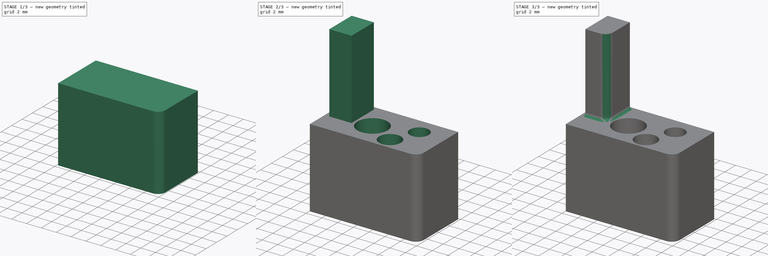
[diagram: build sequence overview — one tinted view per stage of 3, left to right]
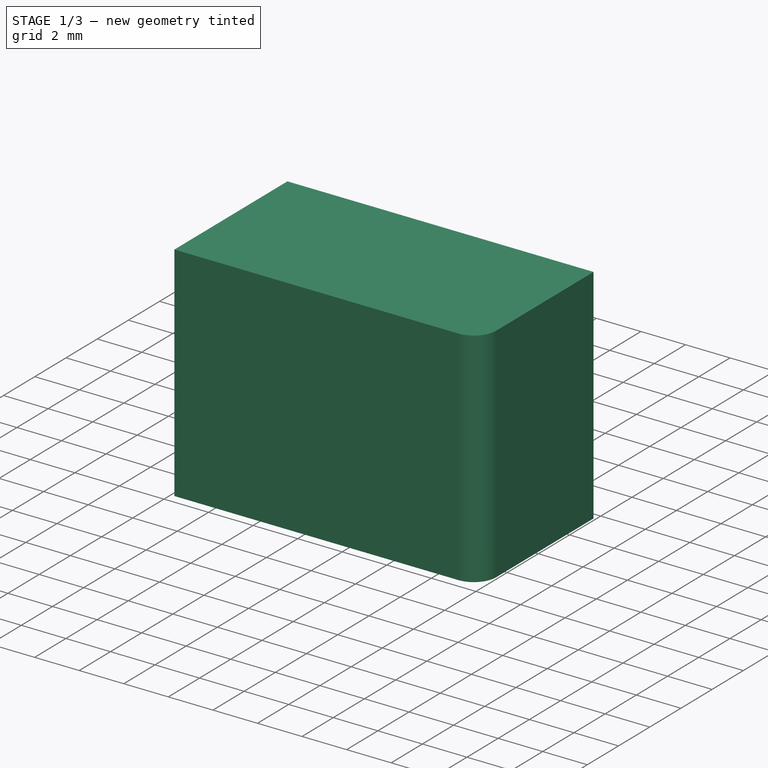
[diagram: stage 1 of 3 — iso view after this stage's code; geometry added in this stage tinted green]
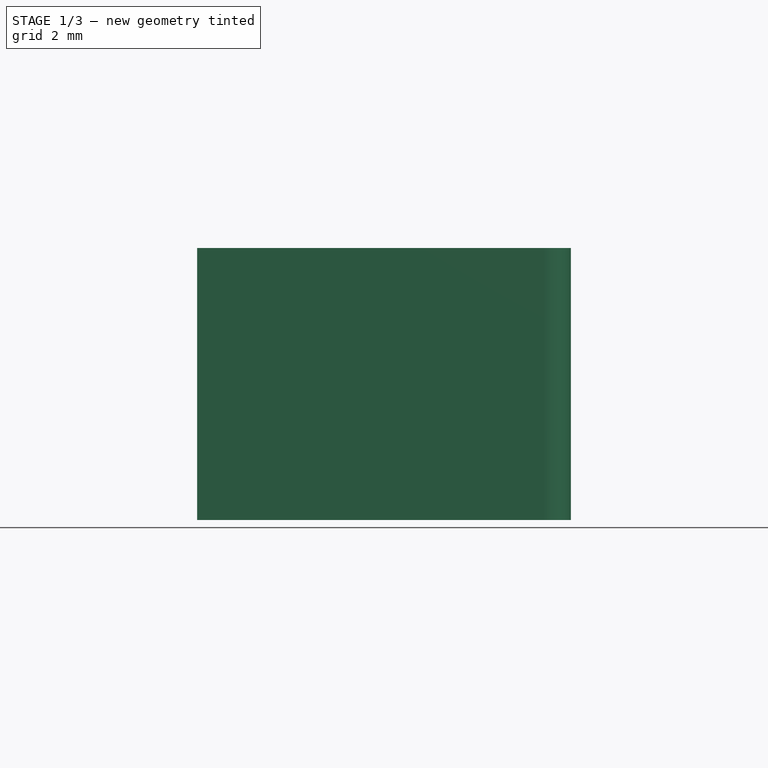
[diagram: stage 1 of 3 — front view after this stage's code; geometry added in this stage tinted green]
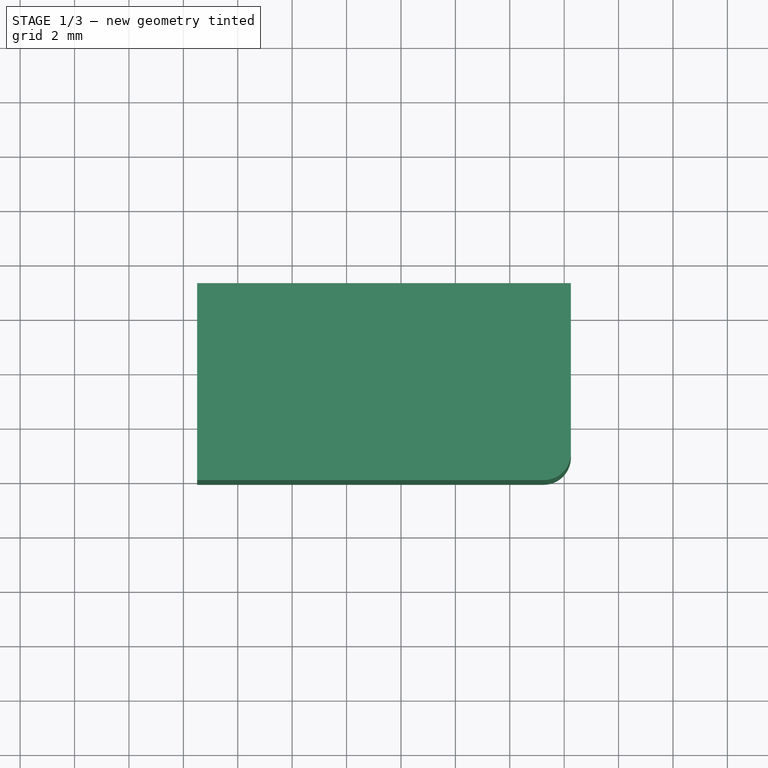
[diagram: stage 1 of 3 — top view after this stage's code; geometry added in this stage tinted green]
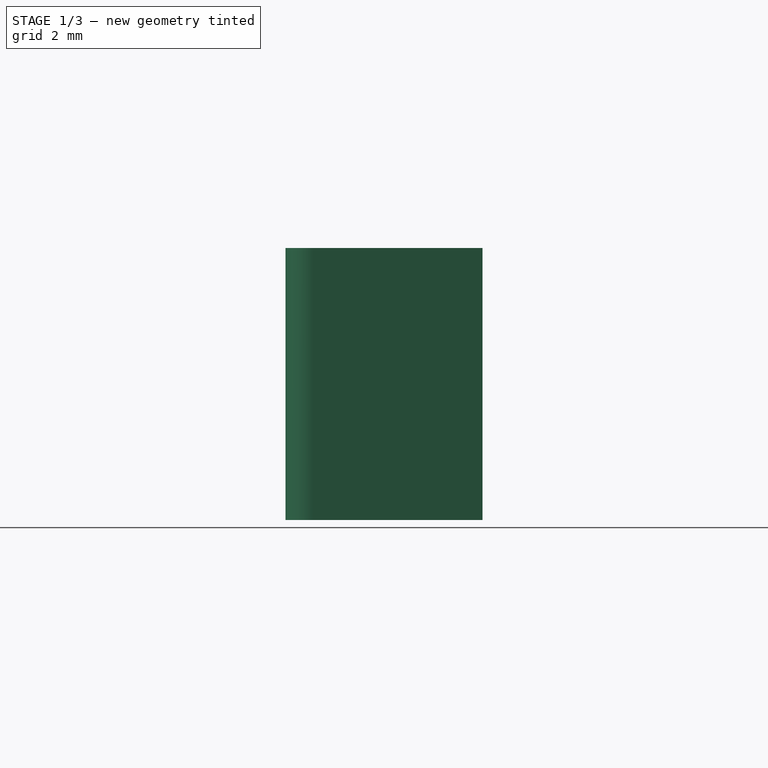
[diagram: stage 1 of 3 — right view after this stage's code; geometry added in this stage tinted green]
FCSTD DOCUMENT  (FreeCAD 0.15R4241 (Git))
Label: strange_part_with_holes
License: CC-BY 3.0
LicenseURL: http://creativecommons.org/licenses/by/3.0/
objects: Sketcher::SketchObject×4, Part::Feature×4, PartDesign::Fillet×3, PartDesign::Pad×2, PartDesign::Pocket×2, Part::Plane×1
note: 20 computed .brp shape members not serialized (recipe doc carries the construction recipe); baked Part::Feature solids carry a one-line shape summary decoded from their .brp

FEATURE [Sketcher::SketchObject] Sketch
  sketch-geometry (4):
    g0: LineSegment StartX=2.50649 StartY=1.94949 StartZ=0 EndX=16.2458 EndY=1.94949 EndZ=0
    g1: LineSegment StartX=16.2458 StartY=1.94949 StartZ=0 EndX=16.2458 EndY=9.19049 EndZ=0
    g2: LineSegment StartX=16.2458 StartY=9.19049 StartZ=0 EndX=2.50649 EndY=9.19049 EndZ=0
    g3: LineSegment StartX=2.50649 StartY=9.19049 StartZ=0 EndX=2.50649 EndY=1.94949 EndZ=0
  constraints (8):
    c: Coincident(g0,g1)
    c: Coincident(g1,g2)
    c: Coincident(g2,g3)
    c: Coincident(g3,g0)
    c: Horizontal(g0)
    c: Horizontal(g2)
    c: Vertical(g1)
    c: Vertical(g3)
FEATURE [PartDesign::Pad] Pad
  Length = 10
  Length2 = 100
  Sketch = -> Sketch
  Type = 0
FEATURE [PartDesign::Fillet] Fillet
  Base = -> Pad [Edge2]
  Radius = 1
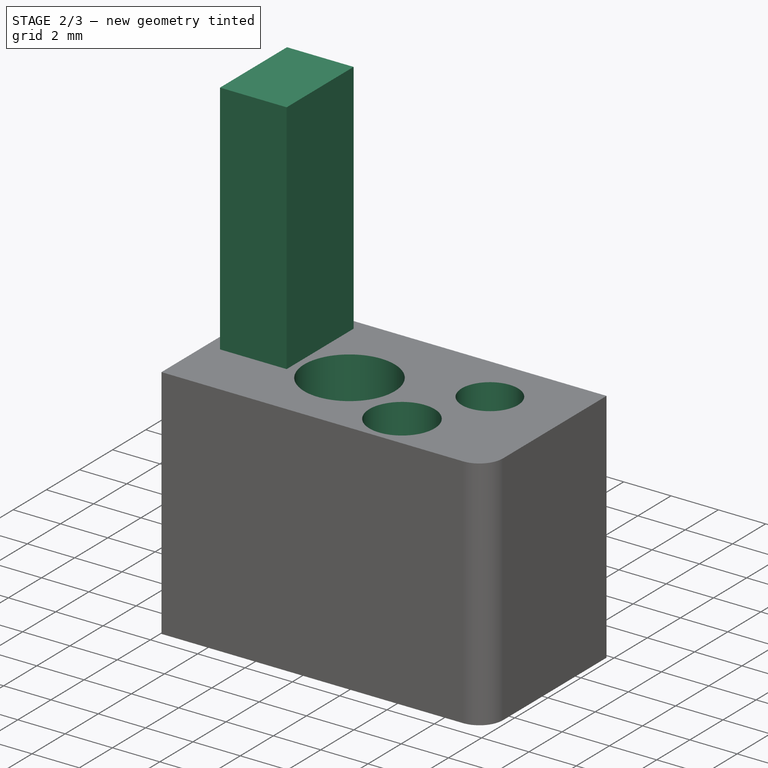
[diagram: stage 2 of 3 — iso view after this stage's code; geometry added in this stage tinted green]
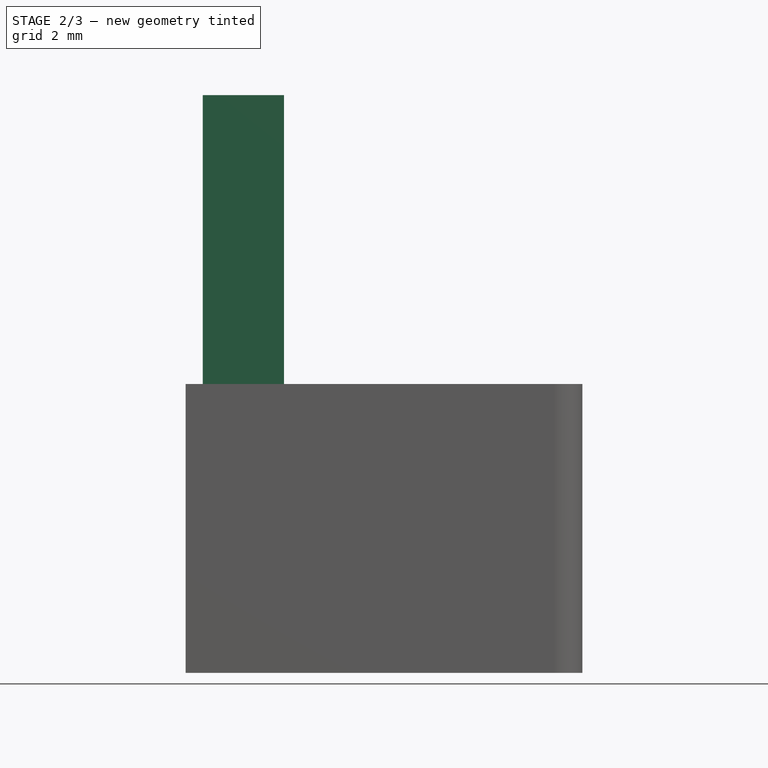
[diagram: stage 2 of 3 — front view after this stage's code; geometry added in this stage tinted green]
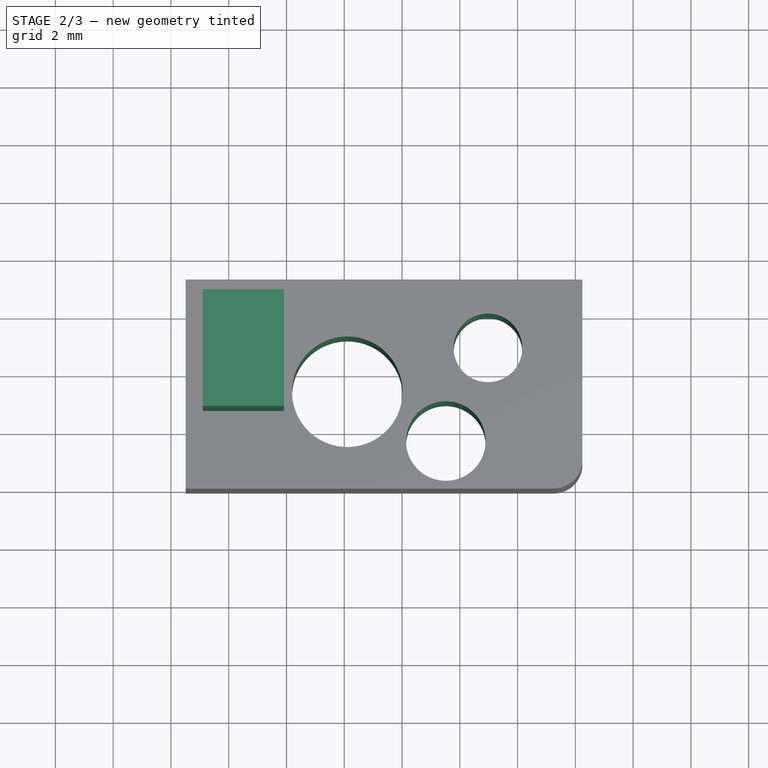
[diagram: stage 2 of 3 — top view after this stage's code; geometry added in this stage tinted green]
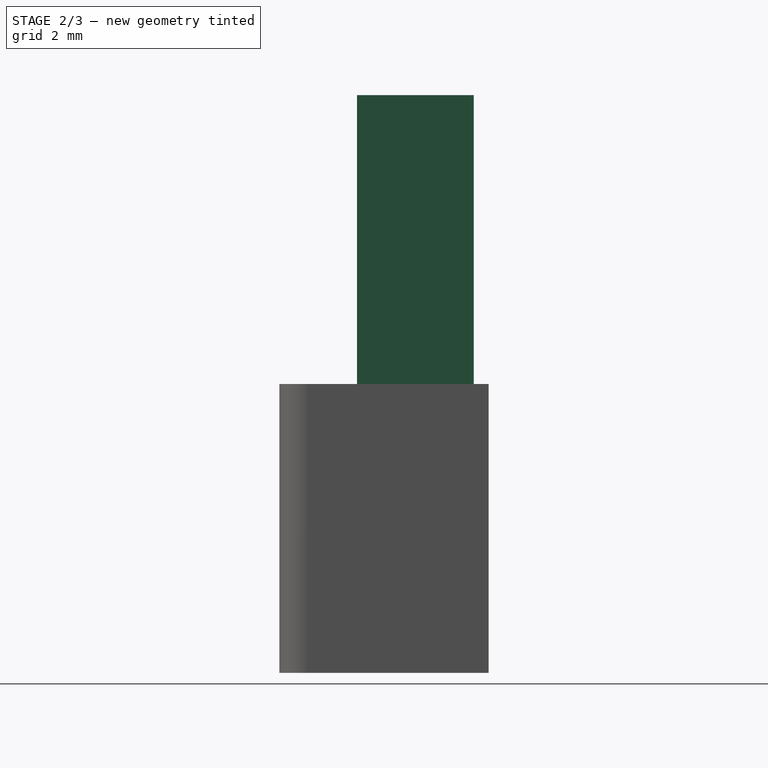
[diagram: stage 2 of 3 — right view after this stage's code; geometry added in this stage tinted green]
FEATURE [Sketcher::SketchObject] Sketch001
  Placement = pos=(0,0,10) rot=(0,0,1;0rad)
  Support = -> Fillet [Face5]
  sketch-geometry (1):
    g0: Circle CenterX=8.10596 CenterY=5.30182 CenterZ=0 NormalX=0 NormalY=0 NormalZ=1 Radius=1.91283
FEATURE [PartDesign::Pocket] Pocket
  Length = 5
  Sketch = -> Sketch001
  Type = 1
FEATURE [Sketcher::SketchObject] Sketch002
  Placement = pos=(0,0,10) rot=(0,0,1;0rad)
  Support = -> Pocket [Face5]
  sketch-geometry (2):
    g0: Circle CenterX=12.9745 CenterY=6.82132 CenterZ=0 NormalX=0 NormalY=0 NormalZ=1 Radius=1.18853
    g1: Circle CenterX=11.5171 CenterY=3.59628 CenterZ=0 NormalX=0 NormalY=0 NormalZ=1 Radius=1.37706
FEATURE [PartDesign::Pocket] Pocket001
  Length = 5
  Sketch = -> Sketch002
  Type = 1
FEATURE [Part::Feature] Shape
  shape: bbox 7.97 x 5.791 x 2e-07 mm, 0 faces, 0 solids (baked)
FEATURE [Part::Feature] Shape001
  shape: bbox 13.74 x 7.241 x 2e-07 mm, 0 faces, 0 solids (baked)
FEATURE [Part::Feature] Pocket001_cs
  shape: bbox 13.74 x 7.241 x 2e-07 mm, 0 faces, 0 solids (baked)
FEATURE [Part::Plane] Plane001
  Length = 50
  Placement = pos=(-5,-5,5) rot=(0,0,1;0rad)
  Width = 50
FEATURE [Sketcher::SketchObject] Sketch003
  Placement = pos=(0,0,10) rot=(0,0,1;0rad)
  Support = -> Pocket001 [Face5]
  sketch-geometry (4):
    g0: LineSegment StartX=3.10003 StartY=4.63666 StartZ=0 EndX=5.9143 EndY=4.63666 EndZ=0
    g1: LineSegment StartX=5.9143 StartY=4.63666 StartZ=0 EndX=5.9143 EndY=8.67695 EndZ=0
    g2: LineSegment StartX=5.9143 StartY=8.67695 StartZ=0 EndX=3.10003 EndY=8.67695 EndZ=0
    g3: LineSegment StartX=3.10003 StartY=8.67695 StartZ=0 EndX=3.10003 EndY=4.63666 EndZ=0
  constraints (8):
    c: Coincident(g0,g1)
    c: Coincident(g1,g2)
    c: Coincident(g2,g3)
    c: Coincident(g3,g0)
    c: Horizontal(g0)
    c: Horizontal(g2)
    c: Vertical(g1)
    c: Vertical(g3)
FEATURE [PartDesign::Pad] Pad001
  Length = 10
  Length2 = 100
  Sketch = -> Sketch003
  Type = 0
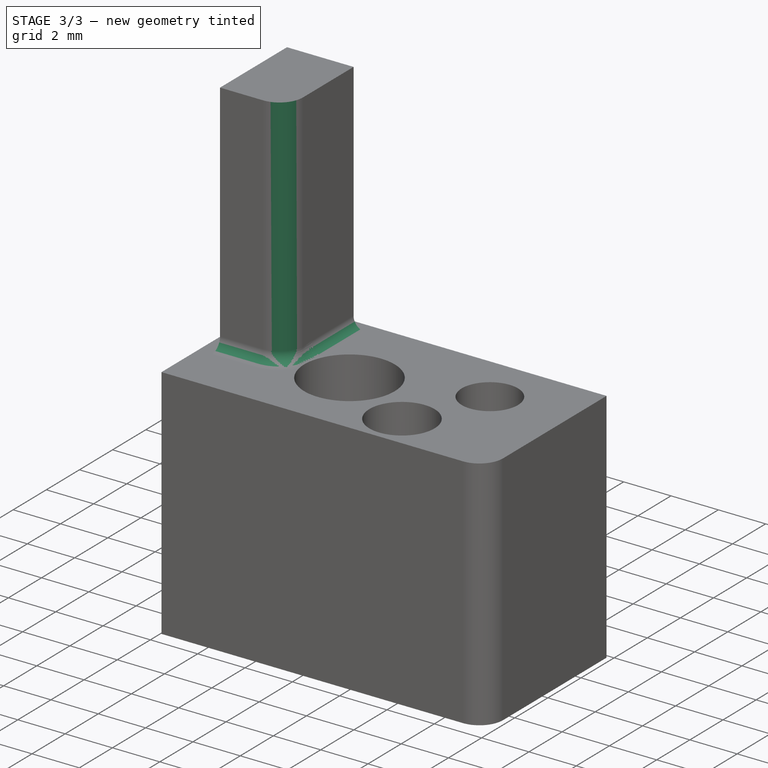
[diagram: stage 3 of 3 — iso view after this stage's code; geometry added in this stage tinted green]
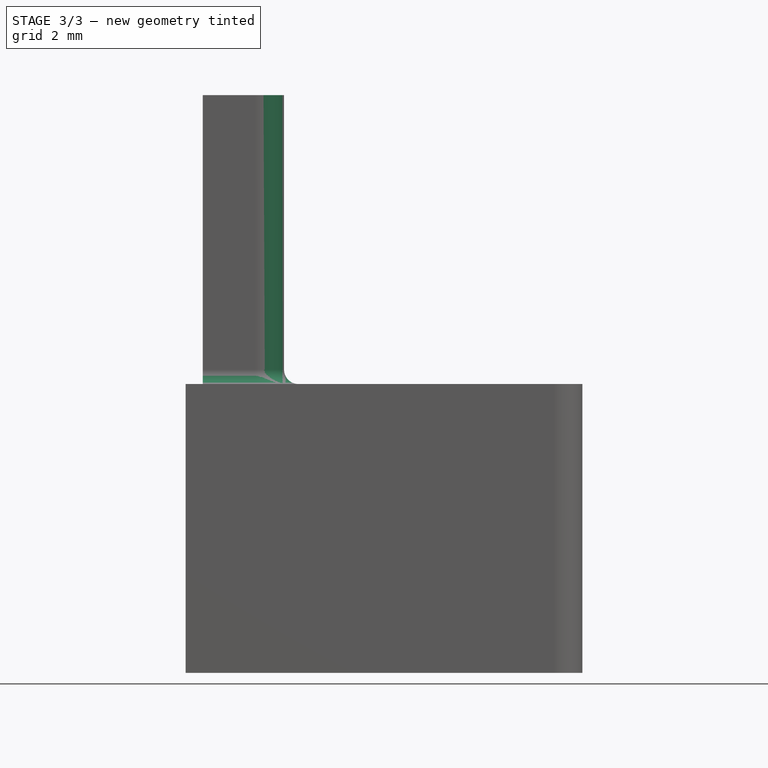
[diagram: stage 3 of 3 — front view after this stage's code; geometry added in this stage tinted green]
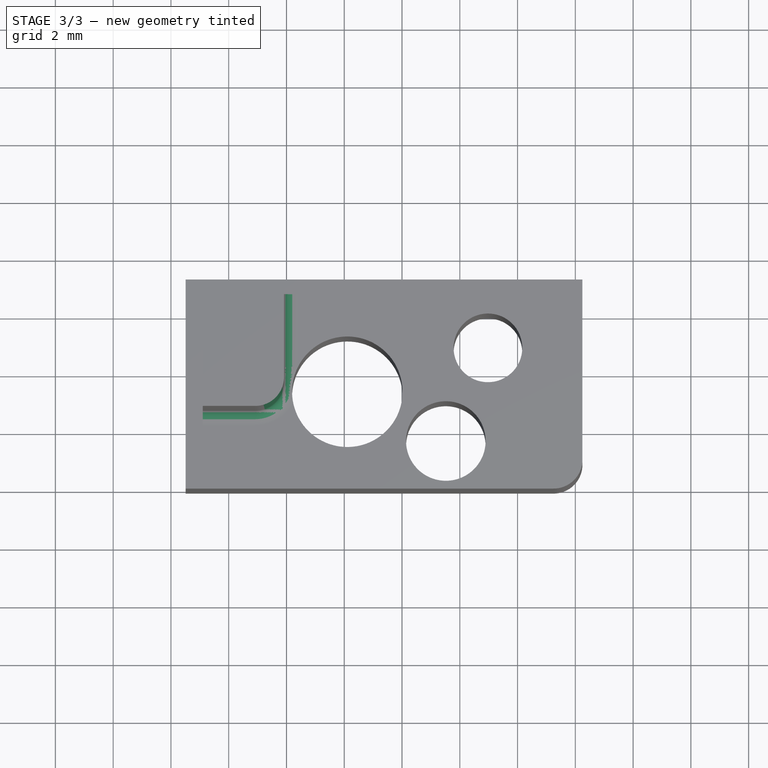
[diagram: stage 3 of 3 — top view after this stage's code; geometry added in this stage tinted green]
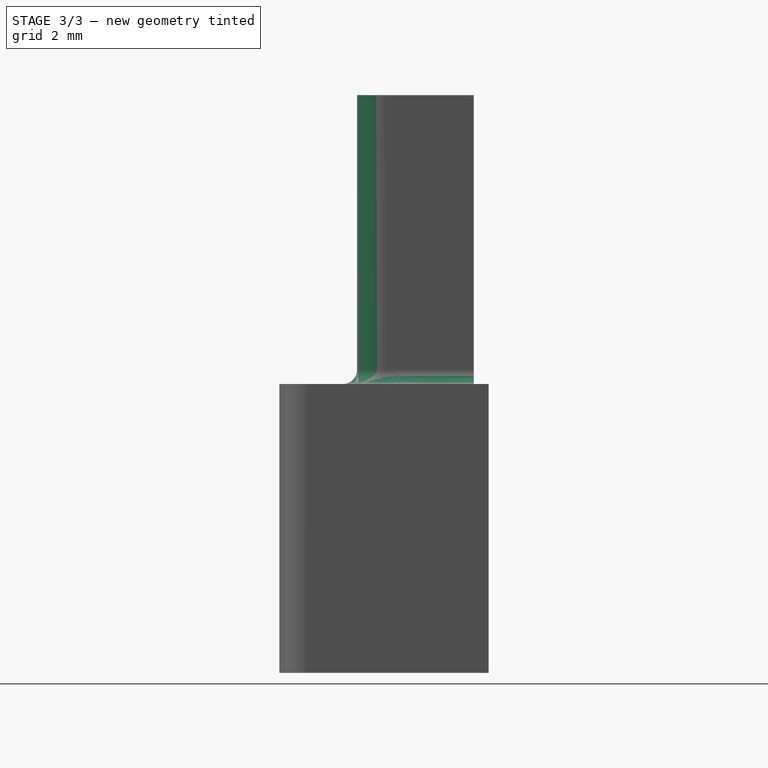
[diagram: stage 3 of 3 — right view after this stage's code; geometry added in this stage tinted green]
FEATURE [Part::Feature] Shape002
  shape: bbox 14.99 x 8.491 x 19 mm, 0 faces, 0 solids (baked)
FEATURE [PartDesign::Fillet] Fillet001
  Base = -> Pad001 [Edge37]
  Radius = 1
FEATURE [PartDesign::Fillet] Fillet002
  Base = -> Fillet001 [Edge1,Edge2,Edge4]
  Radius = 0.5
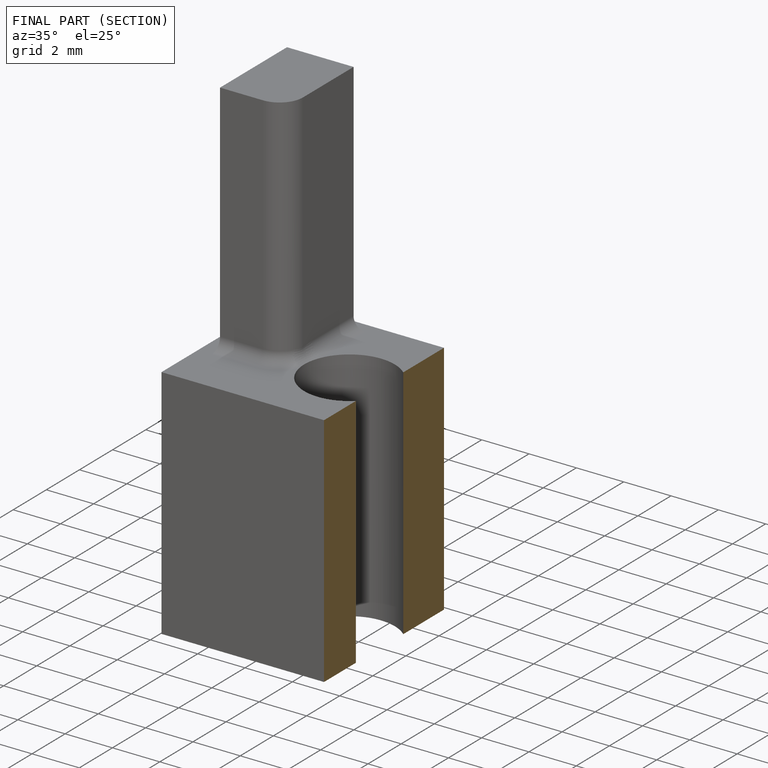
[diagram: finished part — half-section view (interior)]
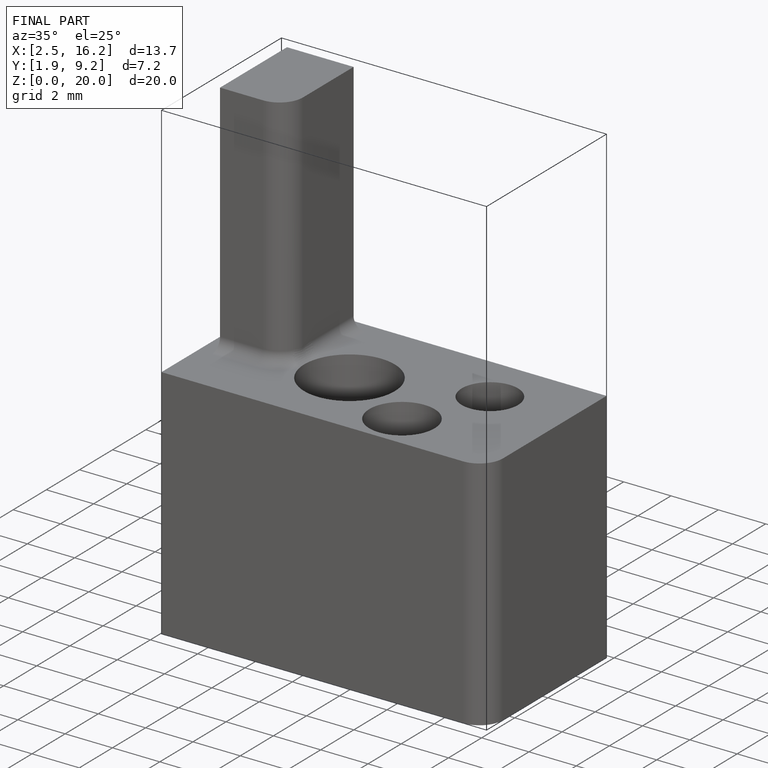
[diagram: finished part — iso view with bounding-box wireframe]
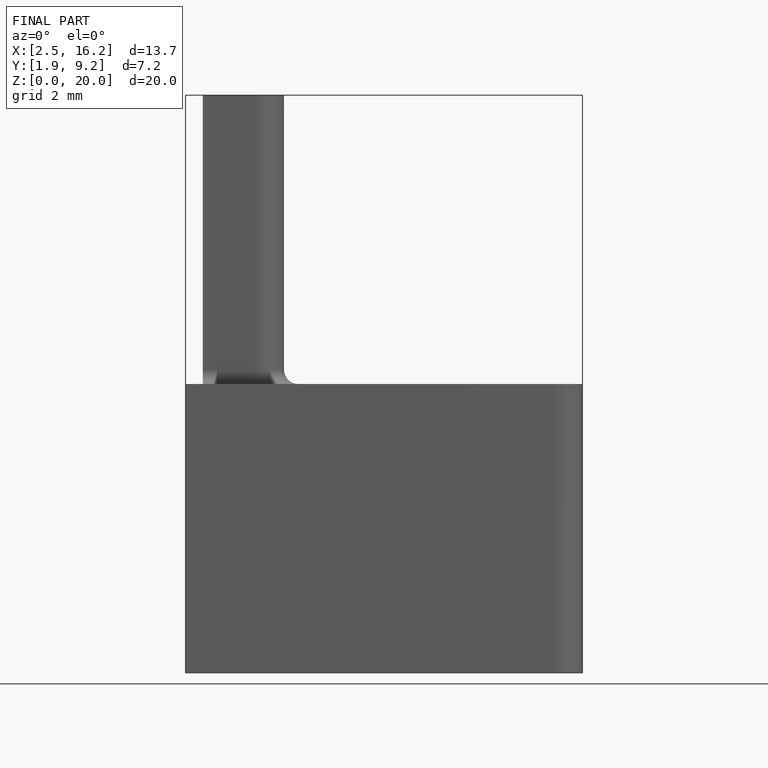
[diagram: finished part — front view with bounding-box wireframe]
